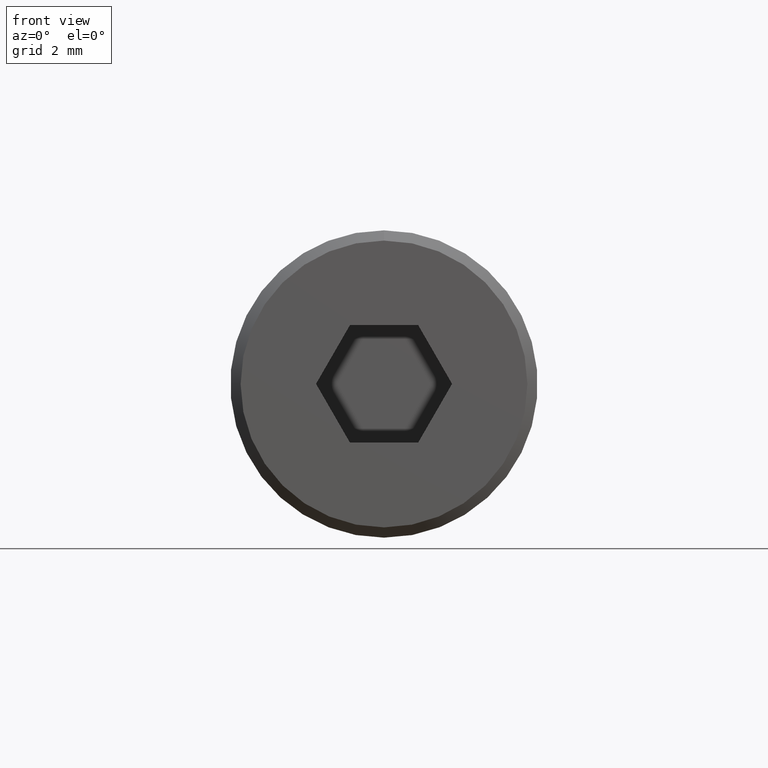
[diagram: clean part render]
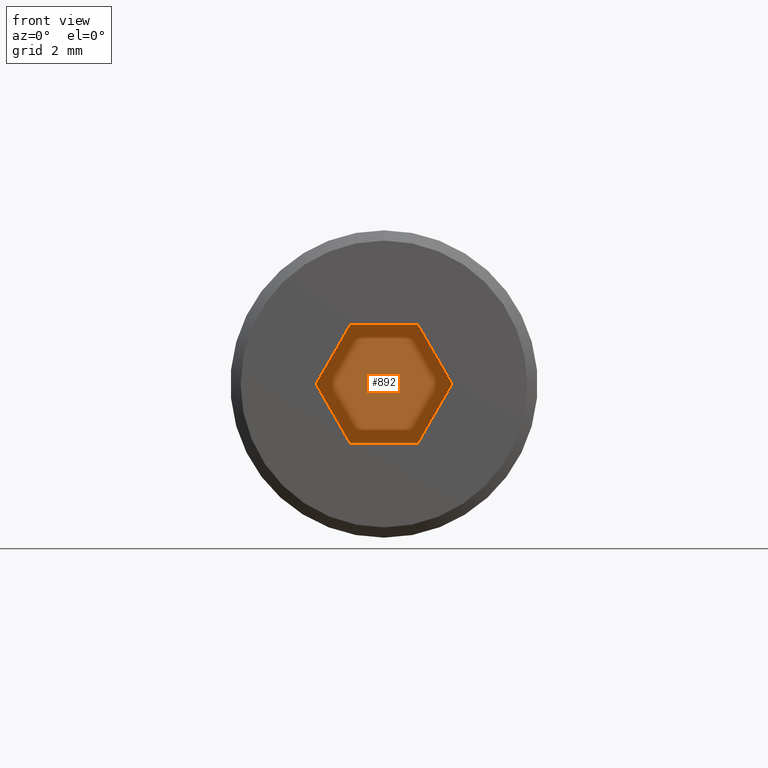
[diagram: same view with one face highlighted and labeled with its STEP entity id]
A machine part, front view. The second image highlights one B-rep face of the part: STEP entity #892.
In plain terms, the highlighted planar face has unit normal (0, -1, 0).
Its self-contained STEP definition (entity closure, byte-faithful):
#3 = CARTESIAN_POINT ( 'NONE',  ( -1.327905619136139100, 3.000000000000000000, 0.0000000000000000000 ) ) ;
#15 = CARTESIAN_POINT ( 'NONE',  ( -0.6639528095680696800, 3.000000000000000000, 1.149999999999999900 ) ) ;
#25 = ORIENTED_EDGE ( 'NONE', *, *, #405, .T. ) ;
#39 = CARTESIAN_POINT ( 'NONE',  ( 0.6639528095680701200, 3.000000000000000000, 1.149999999999999700 ) ) ;
#44 = LINE ( 'NONE', #570, #879 ) ;
#57 = DIRECTION ( 'NONE',  ( 0.5000000000000000000, 0.0000000000000000000, 0.8660254037844386000 ) ) ;
#122 = ORIENTED_EDGE ( 'NONE', *, *, #808, .T. ) ;
#129 = VECTOR ( 'NONE', #424, 1000.000000000000000 ) ;
#226 = AXIS2_PLACEMENT_3D ( 'NONE', #930, #496, #665 ) ;
#232 = VERTEX_POINT ( 'NONE', #39 ) ;
#239 = ORIENTED_EDGE ( 'NONE', *, *, #834, .T. ) ;
#240 = EDGE_LOOP ( 'NONE', ( #122, #530, #239, #25, #893, #940 ) ) ;
#245 = VECTOR ( 'NONE', #755, 1000.000000000000000 ) ;
#273 = CARTESIAN_POINT ( 'NONE',  ( -0.6639528095680701200, 3.000000000000000000, -1.149999999999999700 ) ) ;
#292 = LINE ( 'NONE', #552, #129 ) ;
#307 = VECTOR ( 'NONE', #362, 1000.000000000000200 ) ;
#314 = LINE ( 'NONE', #934, #662 ) ;
#317 = VECTOR ( 'NONE', #895, 1000.000000000000000 ) ;
#344 = PLANE ( 'NONE',  #226 ) ;
#348 = DIRECTION ( 'NONE',  ( -1.000000000000000000, 0.0000000000000000000, 1.632950650801259500E-016 ) ) ;
#362 = DIRECTION ( 'NONE',  ( -0.4999999999999995600, 0.0000000000000000000, 0.8660254037844388200 ) ) ;
#405 = EDGE_CURVE ( 'NONE', #805, #232, #606, .T. ) ;
#424 = DIRECTION ( 'NONE',  ( 0.4999999999999997200, -0.0000000000000000000, -0.8660254037844388200 ) ) ;
#466 = CARTESIAN_POINT ( 'NONE',  ( 0.6639528095680696800, 3.000000000000000000, -1.149999999999999900 ) ) ;
#496 = DIRECTION ( 'NONE',  ( 0.0000000000000000000, -1.000000000000000000, 0.0000000000000000000 ) ) ;
#511 = VERTEX_POINT ( 'NONE', #15 ) ;
#513 = CARTESIAN_POINT ( 'NONE',  ( 1.327905619136139100, 3.000000000000000000, -3.659182332138577500E-016 ) ) ;
#530 = ORIENTED_EDGE ( 'NONE', *, *, #560, .T. ) ;
#541 = VERTEX_POINT ( 'NONE', #3 ) ;
#552 = CARTESIAN_POINT ( 'NONE',  ( -1.327905619136139100, 3.000000000000000000, 0.0000000000000000000 ) ) ;
#560 = EDGE_CURVE ( 'NONE', #823, #608, #596, .T. ) ;
#570 = CARTESIAN_POINT ( 'NONE',  ( 0.6639528095680701200, 3.000000000000000000, 1.149999999999999700 ) ) ;
#595 = EDGE_CURVE ( 'NONE', #511, #541, #899, .T. ) ;
#596 = LINE ( 'NONE', #760, #245 ) ;
#606 = LINE ( 'NONE', #513, #307 ) ;
#608 = VERTEX_POINT ( 'NONE', #466 ) ;
#662 = VECTOR ( 'NONE', #57, 1000.000000000000200 ) ;
#665 = DIRECTION ( 'NONE',  ( 0.0000000000000000000, -0.0000000000000000000, -1.000000000000000000 ) ) ;
#681 = FACE_OUTER_BOUND ( 'NONE', #240, .T. ) ;
#755 = DIRECTION ( 'NONE',  ( 1.000000000000000000, 0.0000000000000000000, -1.632950650801259500E-016 ) ) ;
#760 = CARTESIAN_POINT ( 'NONE',  ( -0.6639528095680701200, 3.000000000000000000, -1.149999999999999700 ) ) ;
#793 = CARTESIAN_POINT ( 'NONE',  ( 1.327905619136139100, 3.000000000000000000, -3.659182332138577500E-016 ) ) ;
#805 = VERTEX_POINT ( 'NONE', #793 ) ;
#808 = EDGE_CURVE ( 'NONE', #541, #823, #292, .T. ) ;
#823 = VERTEX_POINT ( 'NONE', #273 ) ;
#834 = EDGE_CURVE ( 'NONE', #608, #805, #314, .T. ) ;
#858 = EDGE_CURVE ( 'NONE', #232, #511, #44, .T. ) ;
#879 = VECTOR ( 'NONE', #348, 1000.000000000000000 ) ;
#892 = ADVANCED_FACE ( 'NONE', ( #681 ), #344, .T. ) ;
#893 = ORIENTED_EDGE ( 'NONE', *, *, #858, .T. ) ;
#895 = DIRECTION ( 'NONE',  ( -0.4999999999999998900, 0.0000000000000000000, -0.8660254037844387100 ) ) ;
#899 = LINE ( 'NONE', #902, #317 ) ;
#902 = CARTESIAN_POINT ( 'NONE',  ( -0.6639528095680696800, 3.000000000000000000, 1.149999999999999900 ) ) ;
#930 = CARTESIAN_POINT ( 'NONE',  ( -0.6639528095680701200, 3.000000000000000000, -1.149999999999999700 ) ) ;
#934 = CARTESIAN_POINT ( 'NONE',  ( 0.6639528095680696800, 3.000000000000000000, -1.149999999999999900 ) ) ;
#940 = ORIENTED_EDGE ( 'NONE', *, *, #595, .T. ) ;